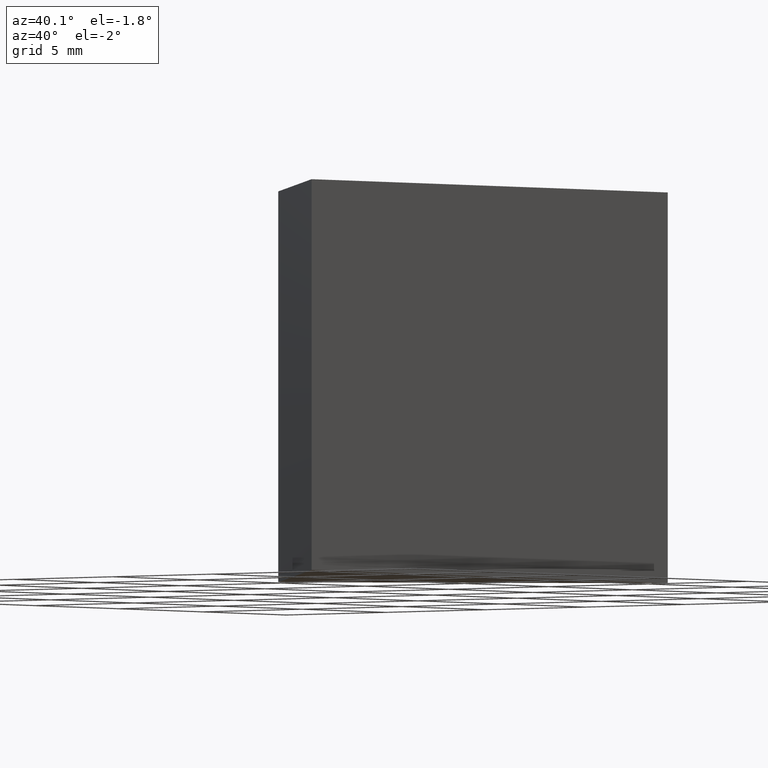
[diagram: clean part render]
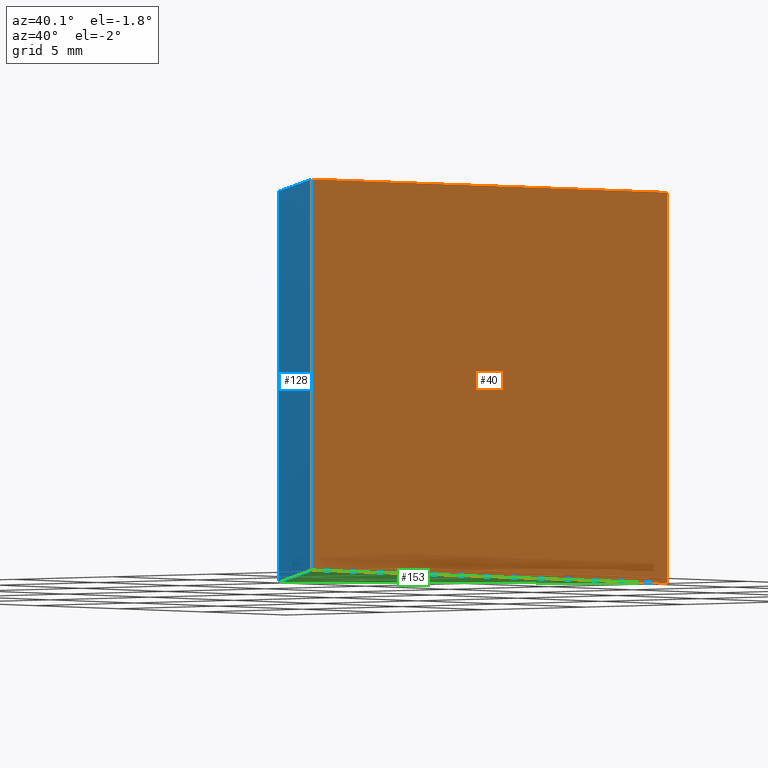
[diagram: same view with three faces highlighted in distinct colors, each labeled with its STEP entity id]
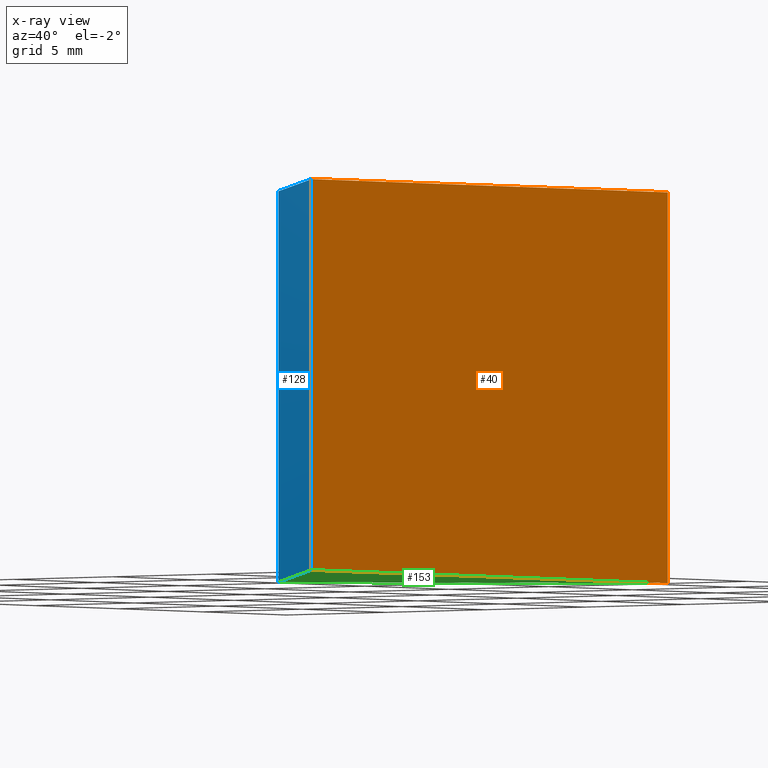
[diagram: x-ray of the same camera — body ghosted, the three highlighted faces saturated]
A machine part, auxiliary view with three faces highlighted in distinct colors.
The next image is the same camera in x-ray (body ghosted, the three faces saturated) — at least one of them is partly hidden behind the body in this view.
Their STEP definitions:

[orange] entity #40 — the highlighted planar face has unit normal (-1, 0, 0).
#3 = EDGE_CURVE ( 'NONE', #21, #125, #105, .T. ) ;
#6 = LINE ( 'NONE', #136, #142 ) ;
#17 = FACE_OUTER_BOUND ( 'NONE', #44, .T. ) ;
#19 = EDGE_CURVE ( 'NONE', #125, #149, #96, .T. ) ;
#21 = VERTEX_POINT ( 'NONE', #162 ) ;
#23 = DIRECTION ( 'NONE',  ( 0.0000000000000000000, 0.0000000000000000000, 1.000000000000000000 ) ) ;
#30 = VECTOR ( 'NONE', #147, 1000.000000000000000 ) ;
#32 = LINE ( 'NONE', #111, #30 ) ;
#34 = CARTESIAN_POINT ( 'NONE',  ( 147.5305096463191600, 23.83262953694761100, 15.00000000000000000 ) ) ;
#39 = VECTOR ( 'NONE', #100, 1000.000000000000000 ) ;
#40 = ADVANCED_FACE ( 'NONE', ( #17 ), #62, .F. ) ;
#44 = EDGE_LOOP ( 'NONE', ( #89, #157, #50, #133 ) ) ;
#49 = CARTESIAN_POINT ( 'NONE',  ( 147.5305096463191600, 45.04583297254402700, 15.00000000000000000 ) ) ;
#50 = ORIENTED_EDGE ( 'NONE', *, *, #81, .F. ) ;
#62 = PLANE ( 'NONE',  #71 ) ;
#71 = AXIS2_PLACEMENT_3D ( 'NONE', #76, #144, #23 ) ;
#76 = CARTESIAN_POINT ( 'NONE',  ( 147.5305096463191600, 23.83262953694761100, 15.00000000000000000 ) ) ;
#79 = CARTESIAN_POINT ( 'NONE',  ( 147.5305096463191600, 45.04583297254402700, 0.0000000000000000000 ) ) ;
#81 = EDGE_CURVE ( 'NONE', #21, #164, #32, .T. ) ;
#89 = ORIENTED_EDGE ( 'NONE', *, *, #19, .T. ) ;
#92 = CARTESIAN_POINT ( 'NONE',  ( 147.5305096463191600, 23.83262953694761100, 0.0000000000000000000 ) ) ;
#93 = DIRECTION ( 'NONE',  ( -0.0000000000000000000, -0.0000000000000000000, -1.000000000000000000 ) ) ;
#96 = LINE ( 'NONE', #120, #129 ) ;
#100 = DIRECTION ( 'NONE',  ( -0.0000000000000000000, -0.0000000000000000000, -1.000000000000000000 ) ) ;
#105 = LINE ( 'NONE', #34, #39 ) ;
#108 = DIRECTION ( 'NONE',  ( 0.0000000000000000000, 1.000000000000000000, 0.0000000000000000000 ) ) ;
#111 = CARTESIAN_POINT ( 'NONE',  ( 147.5305096463191600, 23.83262953694761100, 15.00000000000000000 ) ) ;
#120 = CARTESIAN_POINT ( 'NONE',  ( 147.5305096463191600, 23.83262953694761100, 0.0000000000000000000 ) ) ;
#125 = VERTEX_POINT ( 'NONE', #92 ) ;
#129 = VECTOR ( 'NONE', #108, 1000.000000000000000 ) ;
#133 = ORIENTED_EDGE ( 'NONE', *, *, #3, .T. ) ;
#136 = CARTESIAN_POINT ( 'NONE',  ( 147.5305096463191600, 45.04583297254402700, 15.00000000000000000 ) ) ;
#142 = VECTOR ( 'NONE', #93, 1000.000000000000000 ) ;
#144 = DIRECTION ( 'NONE',  ( -1.000000000000000000, 0.0000000000000000000, 0.0000000000000000000 ) ) ;
#147 = DIRECTION ( 'NONE',  ( 0.0000000000000000000, 1.000000000000000000, 0.0000000000000000000 ) ) ;
#149 = VERTEX_POINT ( 'NONE', #79 ) ;
#157 = ORIENTED_EDGE ( 'NONE', *, *, #159, .F. ) ;
#159 = EDGE_CURVE ( 'NONE', #164, #149, #6, .T. ) ;
#162 = CARTESIAN_POINT ( 'NONE',  ( 147.5305096463191600, 23.83262953694761100, 15.00000000000000000 ) ) ;
#164 = VERTEX_POINT ( 'NONE', #49 ) ;

[blue] entity #128 — the highlighted planar face has unit normal (0.7071, 0.7071, -0).
#3 = EDGE_CURVE ( 'NONE', #21, #125, #105, .T. ) ;
#5 = CARTESIAN_POINT ( 'NONE',  ( 136.9239079285209500, 34.43923125474582000, 0.0000000000000000000 ) ) ;
#7 = DIRECTION ( 'NONE',  ( 0.7071067811865470200, 0.7071067811865481300, -0.0000000000000000000 ) ) ;
#8 = EDGE_CURVE ( 'NONE', #29, #125, #33, .T. ) ;
#10 = CARTESIAN_POINT ( 'NONE',  ( 136.9239079285209500, 34.43923125474582000, 15.00000000000000000 ) ) ;
#15 = EDGE_CURVE ( 'NONE', #52, #21, #54, .T. ) ;
#21 = VERTEX_POINT ( 'NONE', #162 ) ;
#22 = DIRECTION ( 'NONE',  ( 0.7071067811865481300, -0.7071067811865470200, 0.0000000000000000000 ) ) ;
#26 = FACE_OUTER_BOUND ( 'NONE', #64, .T. ) ;
#29 = VERTEX_POINT ( 'NONE', #5 ) ;
#33 = LINE ( 'NONE', #90, #82 ) ;
#34 = CARTESIAN_POINT ( 'NONE',  ( 147.5305096463191600, 23.83262953694761100, 15.00000000000000000 ) ) ;
#38 = PLANE ( 'NONE',  #98 ) ;
#39 = VECTOR ( 'NONE', #100, 1000.000000000000000 ) ;
#45 = CARTESIAN_POINT ( 'NONE',  ( 136.9239079285209500, 34.43923125474582000, 15.00000000000000000 ) ) ;
#47 = LINE ( 'NONE', #10, #109 ) ;
#52 = VERTEX_POINT ( 'NONE', #101 ) ;
#54 = LINE ( 'NONE', #45, #139 ) ;
#60 = ORIENTED_EDGE ( 'NONE', *, *, #15, .F. ) ;
#64 = EDGE_LOOP ( 'NONE', ( #127, #74, #60, #121 ) ) ;
#74 = ORIENTED_EDGE ( 'NONE', *, *, #3, .F. ) ;
#78 = DIRECTION ( 'NONE',  ( -0.7071067811865481300, 0.7071067811865470200, 0.0000000000000000000 ) ) ;
#82 = VECTOR ( 'NONE', #143, 1000.000000000000000 ) ;
#90 = CARTESIAN_POINT ( 'NONE',  ( 136.9239079285209500, 34.43923125474582000, 0.0000000000000000000 ) ) ;
#92 = CARTESIAN_POINT ( 'NONE',  ( 147.5305096463191600, 23.83262953694761100, 0.0000000000000000000 ) ) ;
#98 = AXIS2_PLACEMENT_3D ( 'NONE', #126, #7, #78 ) ;
#100 = DIRECTION ( 'NONE',  ( -0.0000000000000000000, -0.0000000000000000000, -1.000000000000000000 ) ) ;
#101 = CARTESIAN_POINT ( 'NONE',  ( 136.9239079285209500, 34.43923125474582000, 15.00000000000000000 ) ) ;
#105 = LINE ( 'NONE', #34, #39 ) ;
#109 = VECTOR ( 'NONE', #163, 1000.000000000000000 ) ;
#121 = ORIENTED_EDGE ( 'NONE', *, *, #166, .T. ) ;
#125 = VERTEX_POINT ( 'NONE', #92 ) ;
#126 = CARTESIAN_POINT ( 'NONE',  ( 136.9239079285209500, 34.43923125474582000, 15.00000000000000000 ) ) ;
#127 = ORIENTED_EDGE ( 'NONE', *, *, #8, .T. ) ;
#128 = ADVANCED_FACE ( 'NONE', ( #26 ), #38, .F. ) ;
#139 = VECTOR ( 'NONE', #22, 1000.000000000000000 ) ;
#143 = DIRECTION ( 'NONE',  ( 0.7071067811865481300, -0.7071067811865470200, 0.0000000000000000000 ) ) ;
#162 = CARTESIAN_POINT ( 'NONE',  ( 147.5305096463191600, 23.83262953694761100, 15.00000000000000000 ) ) ;
#163 = DIRECTION ( 'NONE',  ( -0.0000000000000000000, -0.0000000000000000000, -1.000000000000000000 ) ) ;
#166 = EDGE_CURVE ( 'NONE', #52, #29, #47, .T. ) ;

[green] entity #153 — the highlighted planar face has unit normal (0, -0, 1).
#5 = CARTESIAN_POINT ( 'NONE',  ( 136.9239079285209500, 34.43923125474582000, 0.0000000000000000000 ) ) ;
#8 = EDGE_CURVE ( 'NONE', #29, #125, #33, .T. ) ;
#13 = FACE_OUTER_BOUND ( 'NONE', #123, .T. ) ;
#19 = EDGE_CURVE ( 'NONE', #125, #149, #96, .T. ) ;
#25 = DIRECTION ( 'NONE',  ( -0.7071067811865484600, -0.7071067811865465700, 0.0000000000000000000 ) ) ;
#27 = ORIENTED_EDGE ( 'NONE', *, *, #8, .F. ) ;
#29 = VERTEX_POINT ( 'NONE', #5 ) ;
#33 = LINE ( 'NONE', #90, #82 ) ;
#48 = DIRECTION ( 'NONE',  ( 1.000000000000000000, 0.0000000000000000000, -0.0000000000000000000 ) ) ;
#66 = CARTESIAN_POINT ( 'NONE',  ( 0.0000000000000000000, 0.0000000000000000000, 0.0000000000000000000 ) ) ;
#79 = CARTESIAN_POINT ( 'NONE',  ( 147.5305096463191600, 45.04583297254402700, 0.0000000000000000000 ) ) ;
#82 = VECTOR ( 'NONE', #143, 1000.000000000000000 ) ;
#86 = AXIS2_PLACEMENT_3D ( 'NONE', #66, #122, #48 ) ;
#90 = CARTESIAN_POINT ( 'NONE',  ( 136.9239079285209500, 34.43923125474582000, 0.0000000000000000000 ) ) ;
#92 = CARTESIAN_POINT ( 'NONE',  ( 147.5305096463191600, 23.83262953694761100, 0.0000000000000000000 ) ) ;
#96 = LINE ( 'NONE', #120, #129 ) ;
#102 = PLANE ( 'NONE',  #86 ) ;
#108 = DIRECTION ( 'NONE',  ( 0.0000000000000000000, 1.000000000000000000, 0.0000000000000000000 ) ) ;
#112 = LINE ( 'NONE', #124, #140 ) ;
#120 = CARTESIAN_POINT ( 'NONE',  ( 147.5305096463191600, 23.83262953694761100, 0.0000000000000000000 ) ) ;
#122 = DIRECTION ( 'NONE',  ( 0.0000000000000000000, -0.0000000000000000000, 1.000000000000000000 ) ) ;
#123 = EDGE_LOOP ( 'NONE', ( #146, #27, #152 ) ) ;
#124 = CARTESIAN_POINT ( 'NONE',  ( 147.5305096463191600, 45.04583297254402700, 0.0000000000000000000 ) ) ;
#125 = VERTEX_POINT ( 'NONE', #92 ) ;
#129 = VECTOR ( 'NONE', #108, 1000.000000000000000 ) ;
#140 = VECTOR ( 'NONE', #25, 1000.000000000000000 ) ;
#143 = DIRECTION ( 'NONE',  ( 0.7071067811865481300, -0.7071067811865470200, 0.0000000000000000000 ) ) ;
#146 = ORIENTED_EDGE ( 'NONE', *, *, #19, .F. ) ;
#149 = VERTEX_POINT ( 'NONE', #79 ) ;
#152 = ORIENTED_EDGE ( 'NONE', *, *, #167, .F. ) ;
#153 = ADVANCED_FACE ( 'NONE', ( #13 ), #102, .F. ) ;
#167 = EDGE_CURVE ( 'NONE', #149, #29, #112, .T. ) ;